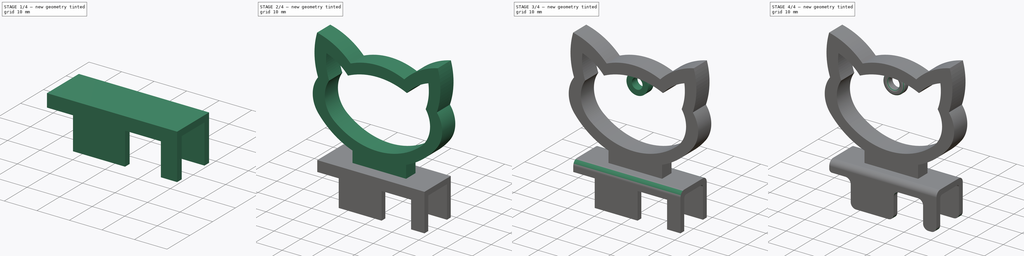
[diagram: build sequence overview — one tinted view per stage of 4, left to right]
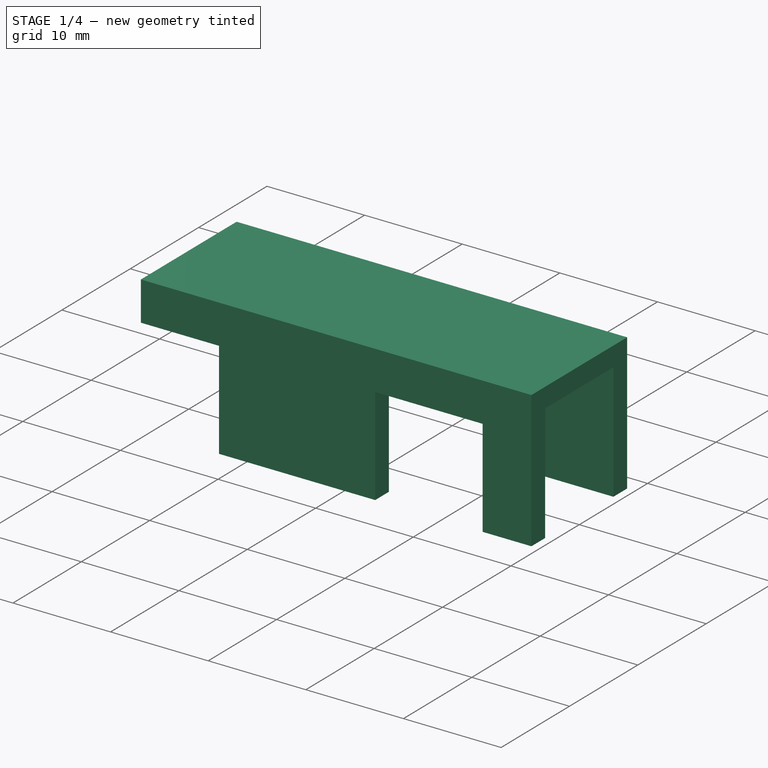
[diagram: stage 1 of 4 — iso view after this stage's code; geometry added in this stage tinted green]
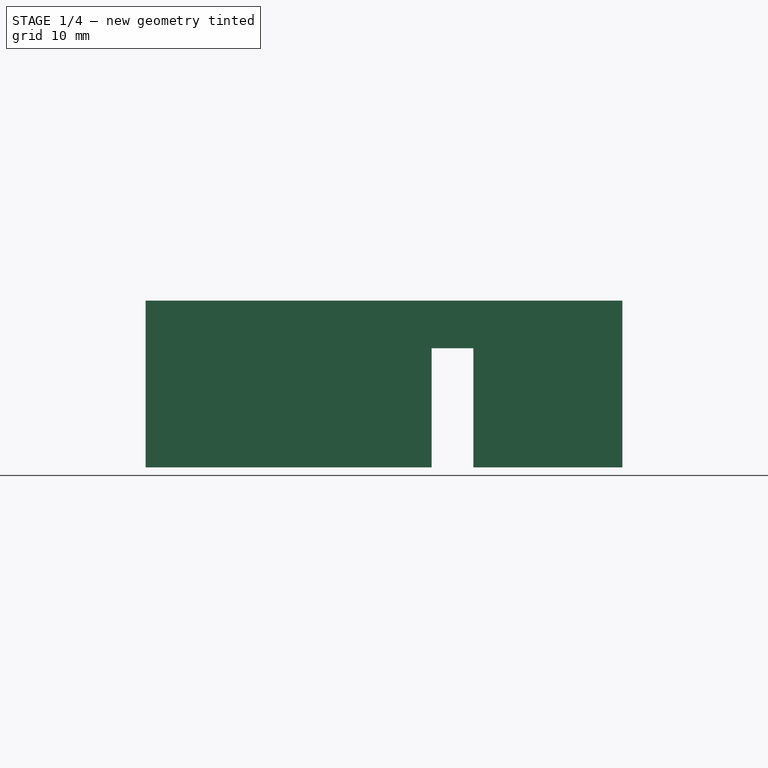
[diagram: stage 1 of 4 — front view after this stage's code; geometry added in this stage tinted green]
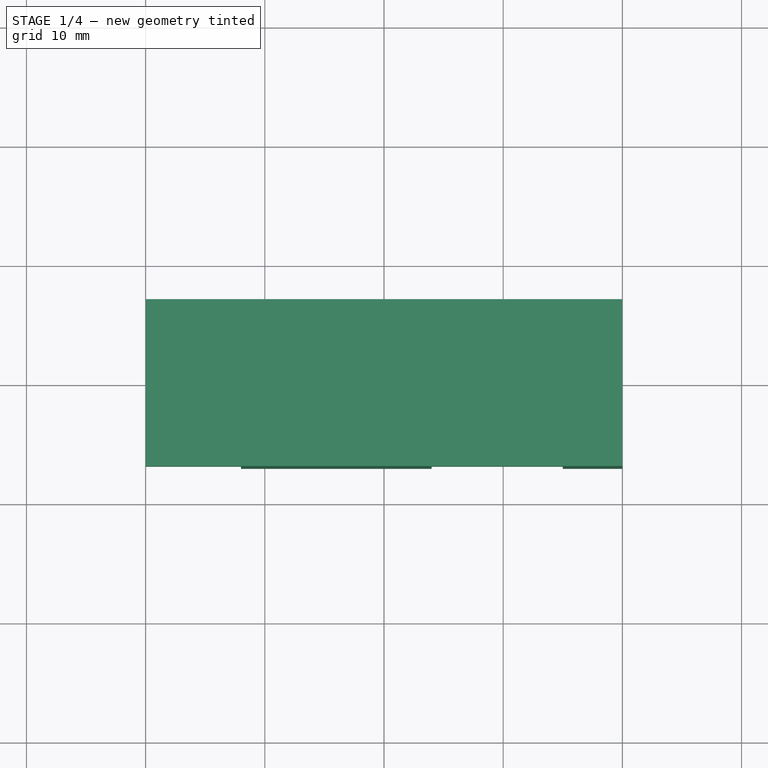
[diagram: stage 1 of 4 — top view after this stage's code; geometry added in this stage tinted green]
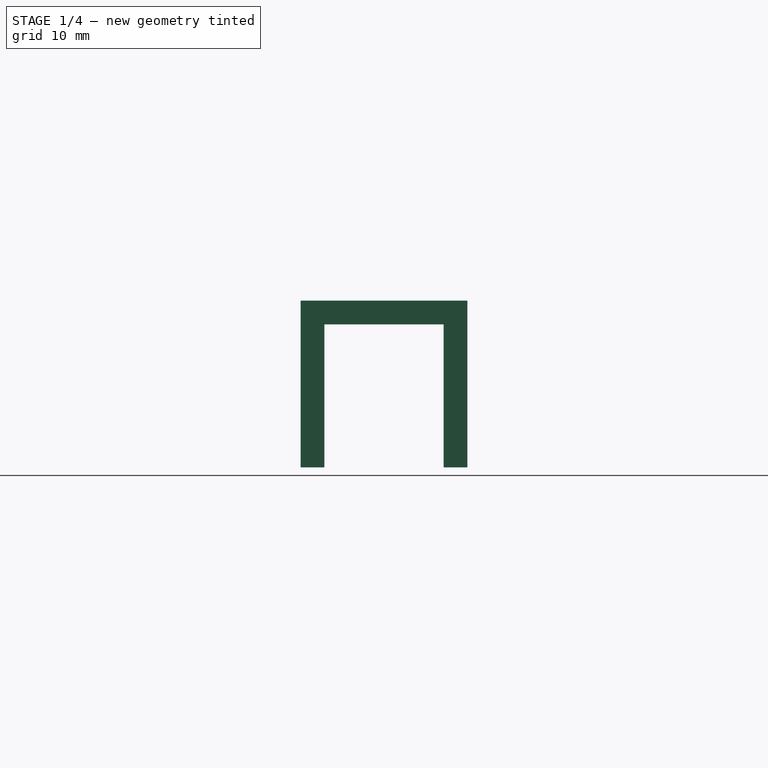
[diagram: stage 1 of 4 — right view after this stage's code; geometry added in this stage tinted green]
FCSTD DOCUMENT  (FreeCAD 0.18.4R)
Label: SelfieCAT
License: All rights reserved
LicenseURL: http://en.wikipedia.org/wiki/All_rights_reserved
objects: Sketcher::SketchObject×7, PartDesign::Fillet×5, PartDesign::Pad×4, PartDesign::Pocket×3, PartDesign::Body×1, App::Part×1
note: 27 computed .brp shape members not serialized (recipe doc carries the construction recipe); baked Part::Feature solids carry a one-line shape summary decoded from their .brp

FEATURE [Sketcher::SketchObject] Sketch
  MapMode = 5
  Placement = pos=(0,0,0) rot=(0.57735,0.57735,0.57735;2.0944rad)
  Support = -> [YZ_Plane001]
  sketch-geometry (9):
    g0: LineSegment StartX=-7 StartY=0 StartZ=0 EndX=-5 EndY=0 EndZ=0
    g1: LineSegment StartX=-5 StartY=0 StartZ=0 EndX=-5 EndY=12 EndZ=0
    g2: LineSegment StartX=-7 StartY=14 StartZ=0 EndX=-7 EndY=0 EndZ=0
    g3: LineSegment StartX=-7 StartY=14 StartZ=0 EndX=7 EndY=14 EndZ=0
    g4: LineSegment StartX=5 StartY=12 StartZ=0 EndX=-5 EndY=12 EndZ=0
    g5: LineSegment StartX=5 StartY=12 StartZ=0 EndX=5 EndY=3.6e-15 EndZ=0
    g6: LineSegment StartX=5 StartY=3.6e-15 StartZ=0 EndX=7 EndY=3.6e-15 EndZ=0
    g7: LineSegment StartX=7 StartY=3.6e-15 StartZ=0 EndX=7 EndY=14 EndZ=0
    g8: LineSegment [constr] StartX=5 StartY=12 StartZ=0 EndX=5 EndY=14 EndZ=0
  constraints (26):
    c: Coincident(g0,g1)
    c: Coincident(g2,g0)
    c: Horizontal(g0)
    c: Vertical(g1)
    c: Vertical(g2)
    c: PointOnObject(g0,g-1)
    c: Horizontal(g3)
    c: Horizontal(g4)
    c: Coincident(g5,g6)
    c: Coincident(g6,g7)
    c: Horizontal(g6)
    c: Vertical(g5)
    c: Vertical(g7)
    c: Symmetric(g5,g0,g-1)
    c: Coincident(g1,g4)
    c: Coincident(g4,g5)
    c: Coincident(g2,g3)
    c: Coincident(g7,g3)
    c: Equal(g0,g6)
    c: DistanceX(g0,g0) = 2
    c: DistanceX(g4,g4) = 10
    c: DistanceY(g5,g5) = 12
    c: Coincident(g4,g8)
    c: PointOnObject(g8,g3)
    c: Vertical(g8)
    c: Equal(g8,g6)
FEATURE [PartDesign::Pad] Pad
  Length = 40
  Length2 = 100
  Midplane = true
  Placement = pos=(0,0,0) rot=(0.57735,0.57735,0.57735;2.0944rad)
  Profile = -> Sketch
  Refine = true
  Type = 0
FEATURE [Sketcher::SketchObject] Sketch002
  ExternalGeometry = -> [Pad]
  MapMode = 5
  Placement = pos=(-3.1e-15,-7,1.5e-15) rot=(-0.57735,-0.57735,0.57735;4.18879rad)
  Support = -> [Pad]
  sketch-geometry (8):
    g0: LineSegment StartX=-10 StartY=15 StartZ=0 EndX=0 EndY=15 EndZ=0
    g1: LineSegment StartX=0 StartY=15 StartZ=0 EndX=0 EndY=4 EndZ=0
    g2: LineSegment StartX=0 StartY=4 StartZ=0 EndX=-10 EndY=4 EndZ=0
    g3: LineSegment StartX=-10 StartY=4 StartZ=0 EndX=-10 EndY=15 EndZ=0
    g4: LineSegment StartX=3.6e-15 StartY=-20 StartZ=0 EndX=-10 EndY=-20 EndZ=0
    g5: LineSegment StartX=-10 StartY=-20 StartZ=0 EndX=-10 EndY=-12 EndZ=0
    g6: LineSegment StartX=-10 StartY=-12 StartZ=0 EndX=3.6e-15 EndY=-12 EndZ=0
    g7: LineSegment StartX=3.6e-15 StartY=-12 StartZ=0 EndX=3.6e-15 EndY=-20 EndZ=0
  constraints (23):
    c: Coincident(g0,g1)
    c: Coincident(g1,g2)
    c: Coincident(g2,g3)
    c: Coincident(g3,g0)
    c: Horizontal(g0)
    c: Horizontal(g2)
    c: Vertical(g1)
    c: Vertical(g3)
    c: PointOnObject(g1,g-2)
    c: DistanceY(g-4,g1) = 24
    c: DistanceY(g0,g-3) = 5
    c: Coincident(g4,g5)
    c: Coincident(g5,g6)
    c: Coincident(g6,g7)
    c: Coincident(g7,g4)
    c: Horizontal(g4)
    c: Horizontal(g6)
    c: Vertical(g5)
    c: Vertical(g7)
    c: Coincident(g4,g-4)
    c: DistanceY(g7,g7) = 8
    c: Equal(g6,g2)
    c: DistanceX(g6,g6) = 10
FEATURE [PartDesign::Pocket] Pocket
  BaseFeature = -> Pad
  Length = 5
  Length2 = 100
  Placement = pos=(0,0,0) rot=(0.57735,0.57735,0.57735;2.0944rad)
  Profile = -> Sketch002
  Refine = true
  Type = 0
FEATURE [Sketcher::SketchObject] Sketch003
  MapMode = 5
  Placement = pos=(3.1e-15,7,-1.5e-15) rot=(0.57735,0.57735,0.57735;4.18879rad)
  Support = -> [Pocket]
  sketch-geometry (4):
    g0: LineSegment StartX=0 StartY=7.5 StartZ=0 EndX=10 EndY=7.5 EndZ=0
    g1: LineSegment StartX=10 StartY=7.5 StartZ=0 EndX=10 EndY=-7.5 EndZ=0
    g2: LineSegment StartX=10 StartY=-7.5 StartZ=0 EndX=0 EndY=-7.5 EndZ=0
    g3: LineSegment StartX=0 StartY=-7.5 StartZ=0 EndX=0 EndY=7.5 EndZ=0
  constraints (11):
    c: Coincident(g0,g1)
    c: Coincident(g1,g2)
    c: Coincident(g2,g3)
    c: Coincident(g3,g0)
    c: Horizontal(g0)
    c: Horizontal(g2)
    c: Vertical(g1)
    c: Vertical(g3)
    c: Symmetric(g0,g2,g-1)
    c: DistanceY(g1,g1) = 15
    c: DistanceX(g0,g0) = 10
FEATURE [PartDesign::Pocket] Pocket001
  BaseFeature = -> Pocket
  Length = 5
  Length2 = 100
  Placement = pos=(0,0,0) rot=(0.57735,0.57735,0.57735;2.0944rad)
  Profile = -> Sketch003
  Refine = true
  Type = 0
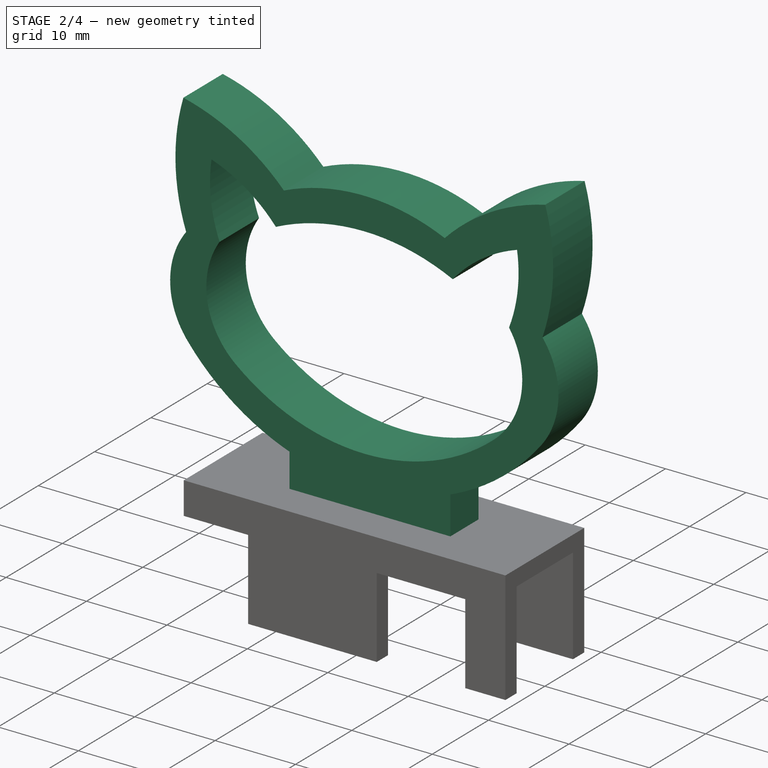
[diagram: stage 2 of 4 — iso view after this stage's code; geometry added in this stage tinted green]
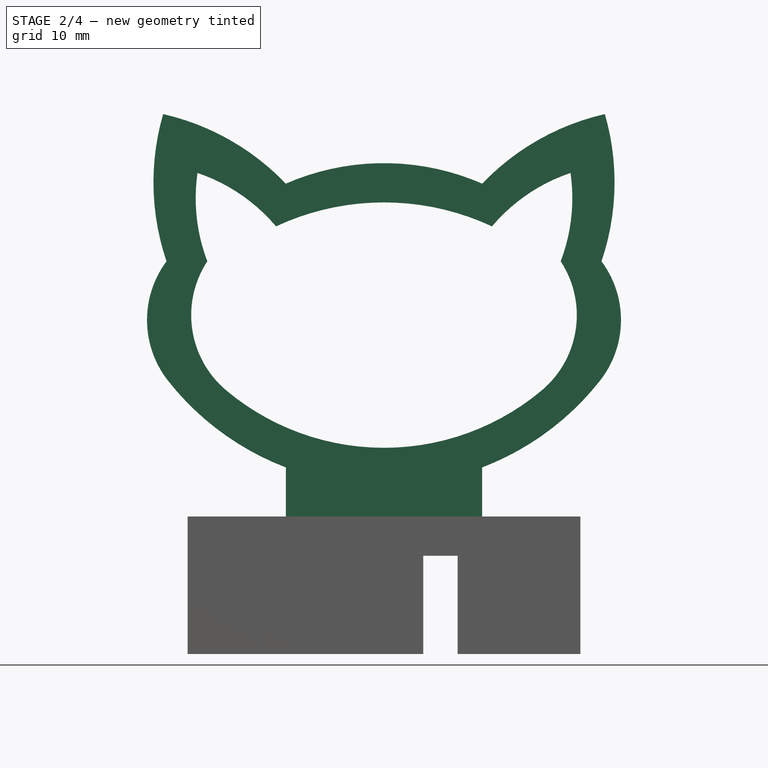
[diagram: stage 2 of 4 — front view after this stage's code; geometry added in this stage tinted green]
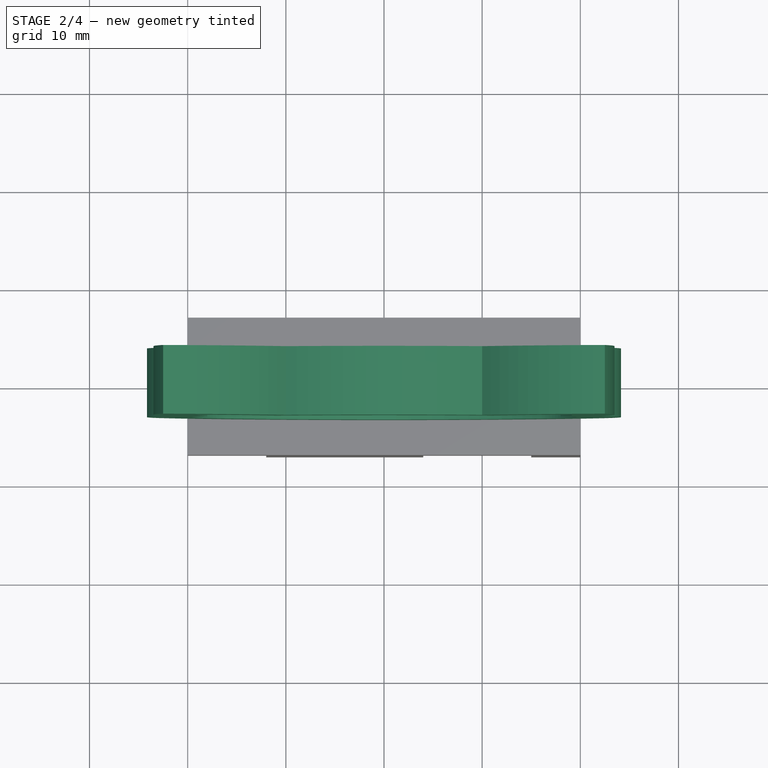
[diagram: stage 2 of 4 — top view after this stage's code; geometry added in this stage tinted green]
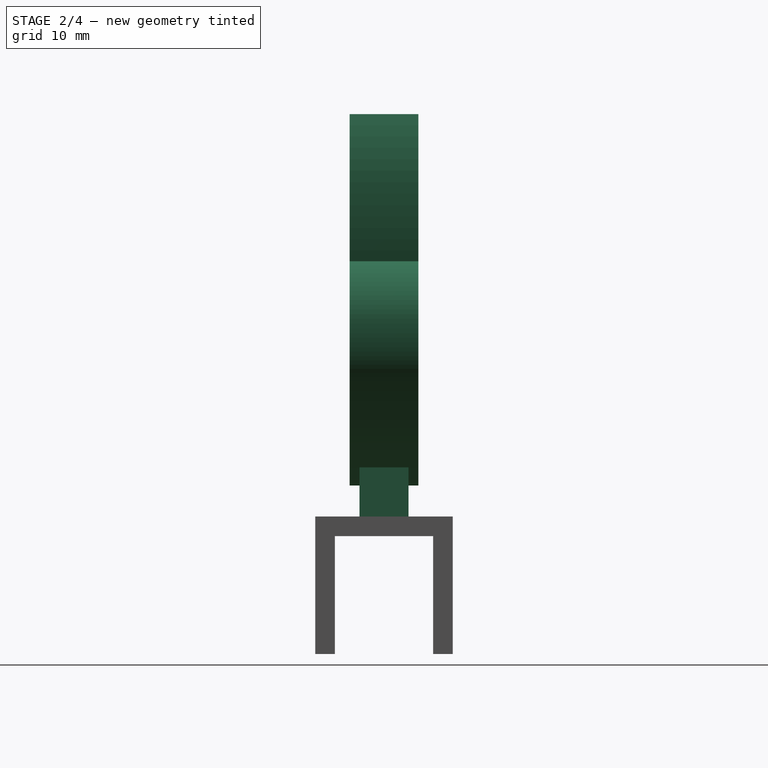
[diagram: stage 2 of 4 — right view after this stage's code; geometry added in this stage tinted green]
FEATURE [Sketcher::SketchObject] Sketch004
  ExternalGeometry = -> [Pocket001]
  MapMode = 5
  Placement = pos=(0,0,0) rot=(1,0,0;1.5708rad)
  Support = -> [XZ_Plane001]
  sketch-geometry (5):
    g0: LineSegment [constr] StartX=-10 StartY=19 StartZ=0 EndX=10 EndY=19 EndZ=0
    g1: LineSegment StartX=10 StartY=19 StartZ=0 EndX=10 EndY=14 EndZ=0
    g2: LineSegment StartX=10 StartY=14 StartZ=0 EndX=-10 EndY=14 EndZ=0
    g3: LineSegment StartX=-10 StartY=14 StartZ=0 EndX=-10 EndY=19 EndZ=0
    g4: ArcOfCircle CenterX=-2.3e-15 CenterY=45.1534 CenterZ=0 NormalX=0 NormalY=0 NormalZ=1 AngleXU=0 Radius=28 StartAngle=4.34718 EndAngle=5.0776
  constraints (14):
    c: Coincident(g0,g1)
    c: Coincident(g1,g2)
    c: Coincident(g2,g3)
    c: Coincident(g3,g0)
    c: Horizontal(g0)
    c: Vertical(g1)
    c: Vertical(g3)
    c: PointOnObject(g1,g-3)
    c: Symmetric(g1,g2,g-2)
    c: DistanceX(g2,g2) = 20
    c: DistanceY(g1,g1) = 5
    c: Coincident(g4,g1)
    c: Coincident(g4,g3)
    c: Radius(g4) = 28
FEATURE [PartDesign::Pad] Pad001
  BaseFeature = -> Pocket001
  Length = 5
  Length2 = 100
  Midplane = true
  Placement = pos=(0,0,0) rot=(0.57735,0.57735,0.57735;2.0944rad)
  Profile = -> Sketch004
  Refine = true
  Type = 0
FEATURE [Sketcher::SketchObject] Sketch005
  ExternalGeometry = -> [Pad001]
  MapMode = 5
  Placement = pos=(0,0,0) rot=(1,0,0;1.5708rad)
  Support = -> [XZ_Plane001]
  sketch-geometry (8):
    g0: ArcOfCircle CenterX=-1.74e-14 CenterY=45.1534 CenterZ=0 NormalX=0 NormalY=0 NormalZ=1 AngleXU=0 Radius=28 StartAngle=3.80854 EndAngle=5.61624
    g1: ArcOfCircle CenterX=-14.1429 CenterY=34.0188 CenterZ=0 NormalX=0 NormalY=0 NormalZ=1 AngleXU=0 Radius=10 StartAngle=2.50044 EndAngle=3.80854
    g2: ArcOfCircle CenterX=-7.5e-15 CenterY=25 CenterZ=0 NormalX=0 NormalY=0 NormalZ=1 AngleXU=0 Radius=25 StartAngle=1.15928 EndAngle=1.98231
    g3: ArcOfCircle CenterX=14.1429 CenterY=34.0188 CenterZ=0 NormalX=0 NormalY=0 NormalZ=1 AngleXU=0 Radius=10 StartAngle=5.61624 EndAngle=6.92434
    g4: ArcOfCircle CenterX=28.0601 CenterY=30.6261 CenterZ=0 NormalX=0 NormalY=0 NormalZ=1 AngleXU=0 Radius=25 StartAngle=1.79508 EndAngle=2.37807
    g5: ArcOfCircle CenterX=-28.0601 CenterY=30.6261 CenterZ=0 NormalX=0 NormalY=0 NormalZ=1 AngleXU=0 Radius=25 StartAngle=0.763521 EndAngle=1.34651
    g6: ArcOfCircle CenterX=-1.51317 CenterY=48.0453 CenterZ=0 NormalX=0 NormalY=0 NormalZ=1 AngleXU=0 Radius=25 StartAngle=5.95554 EndAngle=6.56509
    g7: ArcOfCircle CenterX=1.51317 CenterY=48.0453 CenterZ=0 NormalX=0 NormalY=0 NormalZ=1 AngleXU=0 Radius=25 StartAngle=2.85969 EndAngle=3.46924
  constraints (26):
    c: Coincident(g0,g-3)
    c: PointOnObject(g-3,g0)
    c: Symmetric(g2,g2,g-2)
    c: Symmetric(g4,g5,g-2)
    c: Symmetric(g3,g1,g-2)
    c: Tangent(g1,g0) = -1.5708
    c: Tangent(g3,g0) = -1.5708
    c: Radius(g2) = 25
    c: DistanceY(g-1,g2) = 25
    c: Radius(g1) = 10
    c: DistanceX(g2,g0) = 22
    c: DistanceX(g2,g2) = 20
    c: DistanceX(g5,g4) = 45
    c: DistanceY(g-1,g4) = 55
    c: Symmetric(g3,g1,g-2)
    c: DistanceY(g-1,g1) = 40
    c: Coincident(g4,g2)
    c: Coincident(g5,g2)
    c: Equal(g5,g4)
    c: Radius(g5) = 25
    c: Coincident(g6,g4)
    c: Coincident(g6,g3)
    c: Coincident(g7,g5)
    c: Coincident(g7,g1)
    c: Equal(g7,g6)
    c: Radius(g7) = 25
FEATURE [PartDesign::Pad] Pad002
  BaseFeature = -> Pad001
  Length = 7
  Length2 = 100
  Midplane = true
  Placement = pos=(0,0,0) rot=(0.57735,0.57735,0.57735;2.0944rad)
  Profile = -> Sketch005
  Refine = true
  Type = 0
FEATURE [Sketcher::SketchObject] Sketch006
  MapMode = 5
  Placement = pos=(0,0,0) rot=(1,0,0;1.5708rad)
  Support = -> [XZ_Plane001]
  sketch-geometry (8):
    g0: ArcOfCircle CenterX=1.3e-15 CenterY=20 CenterZ=0 NormalX=0 NormalY=0 NormalZ=1 AngleXU=0 Radius=26 StartAngle=1.13396 EndAngle=2.00763
    g1: ArcOfCircle CenterX=24.7511 CenterY=31.9435 CenterZ=0 NormalX=0 NormalY=0 NormalZ=1 AngleXU=0 Radius=18 StartAngle=1.896 EndAngle=2.44021
    g2: ArcOfCircle CenterX=1.1853 CenterY=46.4239 CenterZ=0 NormalX=0 NormalY=0 NormalZ=1 AngleXU=0 Radius=18 StartAngle=5.91826 EndAngle=6.4268
    g3: ArcOfCircle CenterX=9.64207 CenterY=34.5095 CenterZ=0 NormalX=0 NormalY=0 NormalZ=1 AngleXU=0 Radius=10 StartAngle=5.41054 EndAngle=6.86441
    g4: ArcOfCircle CenterX=-3e-16 CenterY=46 CenterZ=0 NormalX=0 NormalY=0 NormalZ=1 AngleXU=0 Radius=25 StartAngle=4.01423 EndAngle=5.41054
    g5: ArcOfCircle CenterX=-9.64207 CenterY=34.5095 CenterZ=0 NormalX=0 NormalY=0 NormalZ=1 AngleXU=0 Radius=10 StartAngle=2.56037 EndAngle=4.01423
    g6: ArcOfCircle CenterX=-1.1853 CenterY=46.4239 CenterZ=0 NormalX=0 NormalY=0 NormalZ=1 AngleXU=0 Radius=18 StartAngle=2.99798 EndAngle=3.50652
    g7: ArcOfCircle CenterX=-24.7511 CenterY=31.9435 CenterZ=0 NormalX=0 NormalY=0 NormalZ=1 AngleXU=0 Radius=18 StartAngle=0.701384 EndAngle=1.24559
  constraints (26):
    c: Coincident(g1,g0)
    c: Coincident(g2,g1)
    c: Coincident(g3,g2)
    c: Coincident(g6,g5)
    c: Coincident(g7,g6)
    c: Coincident(g7,g0)
    c: Symmetric(g0,g0,g-2)
    c: Symmetric(g1,g6,g-2)
    c: Symmetric(g5,g2,g-2)
    c: Tangent(g4,g3) = -1.5708
    c: Radius(g0) = 26
    c: DistanceY(g-1,g0) = 20
    c: DistanceX(g0,g0) = 22
    c: DistanceX(g6,g1) = 38
    c: DistanceY(g-1,g1) = 49
    c: Equal(g2,g1)
    c: Equal(g1,g7)
    c: Equal(g7,g6)
    c: Radius(g7) = 18
    c: Tangent(g5,g4) = -1.5708
    c: Radius(g4) = 25
    c: Symmetric(g4,g3,g-2)
    c: DistanceY(g0,g4) = 26
    c: Radius(g5) = 10
    c: DistanceX(g5,g2) = 36
    c: DistanceY(g-1,g5) = 40
FEATURE [PartDesign::Pocket] Pocket002
  BaseFeature = -> Pad002
  Length = 5
  Length2 = 100
  Midplane = true
  Placement = pos=(0,0,0) rot=(0.57735,0.57735,0.57735;2.0944rad)
  Profile = -> Sketch006
  Refine = true
  Reversed = true
  Type = 1
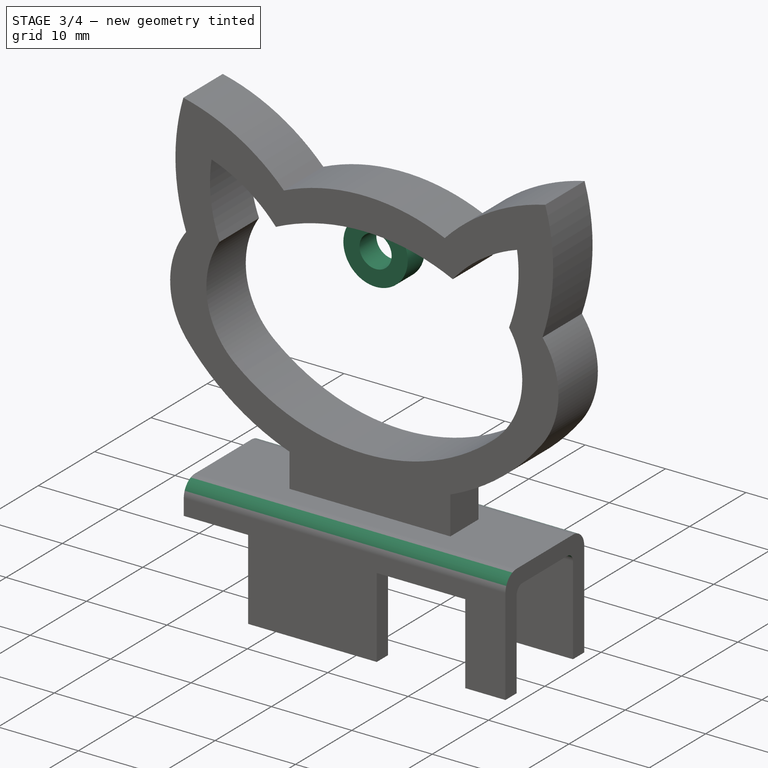
[diagram: stage 3 of 4 — iso view after this stage's code; geometry added in this stage tinted green]
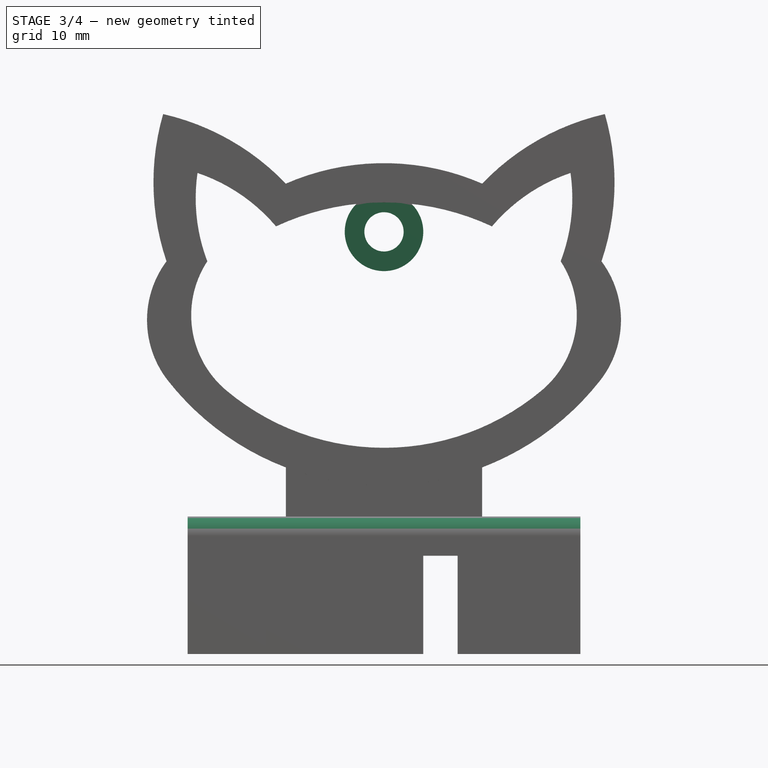
[diagram: stage 3 of 4 — front view after this stage's code; geometry added in this stage tinted green]
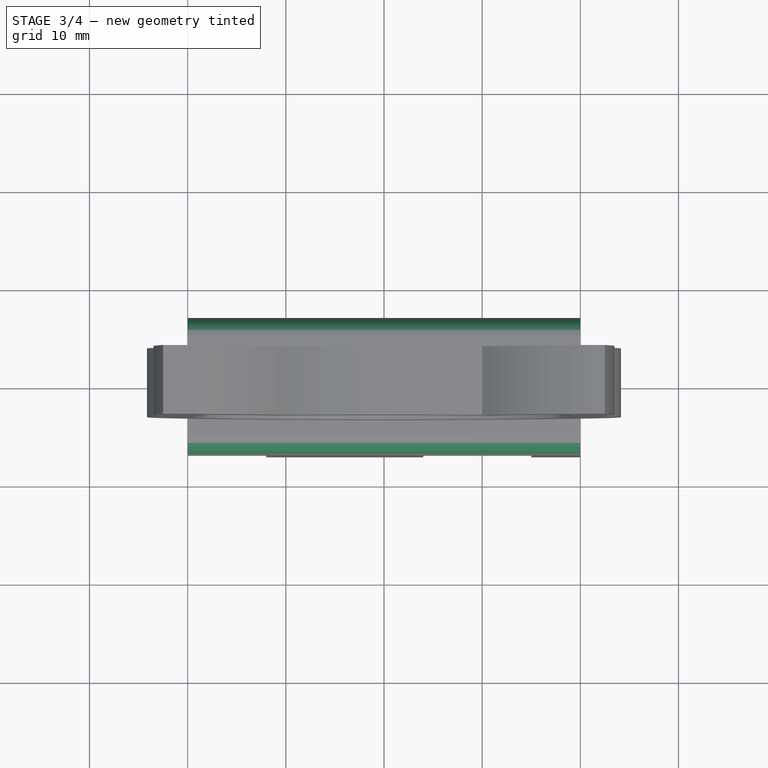
[diagram: stage 3 of 4 — top view after this stage's code; geometry added in this stage tinted green]
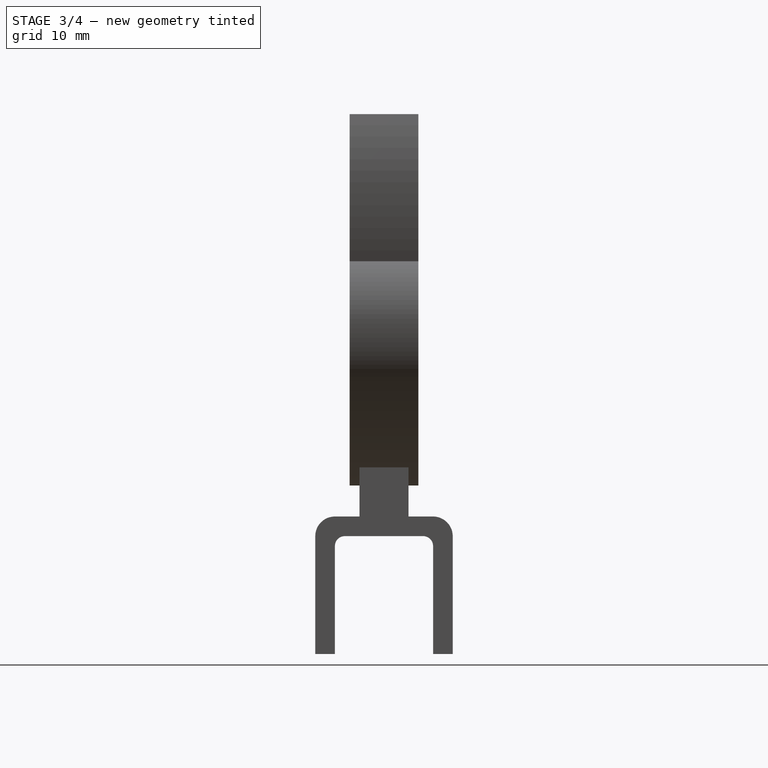
[diagram: stage 3 of 4 — right view after this stage's code; geometry added in this stage tinted green]
FEATURE [Sketcher::SketchObject] Sketch007
  MapMode = 5
  Placement = pos=(0,0,0) rot=(1,0,0;1.5708rad)
  Support = -> [XZ_Plane001]
  sketch-geometry (2):
    g0: Circle CenterX=0 CenterY=43 CenterZ=0 NormalX=0 NormalY=0 NormalZ=1 AngleXU=0 Radius=4
    g1: Circle CenterX=0 CenterY=43 CenterZ=0 NormalX=0 NormalY=0 NormalZ=1 AngleXU=0 Radius=2
  constraints (5):
    c: PointOnObject(g0,g-2)
    c: Coincident(g1,g0)
    c: Radius(g0) = 4
    c: Radius(g1) = 2
    c: DistanceY(g-1,g0) = 43
FEATURE [PartDesign::Pad] Pad003
  BaseFeature = -> Pocket002
  Length = 3
  Length2 = 100
  Midplane = true
  Placement = pos=(0,0,0) rot=(0.57735,0.57735,0.57735;2.0944rad)
  Profile = -> Sketch007
  Refine = true
  Type = 0
FEATURE [PartDesign::Fillet] Fillet
  Base = -> Pad003 [Edge65,Edge68]
  BaseFeature = -> Pad003
  Placement = pos=(0,0,0) rot=(0.57735,0.57735,0.57735;2.0944rad)
  Radius = 2
FEATURE [PartDesign::Fillet] Fillet001
  Base = -> Fillet [Edge53,Edge47]
  BaseFeature = -> Fillet
  Placement = pos=(0,0,0) rot=(0.57735,0.57735,0.57735;2.0944rad)
  Radius = 1
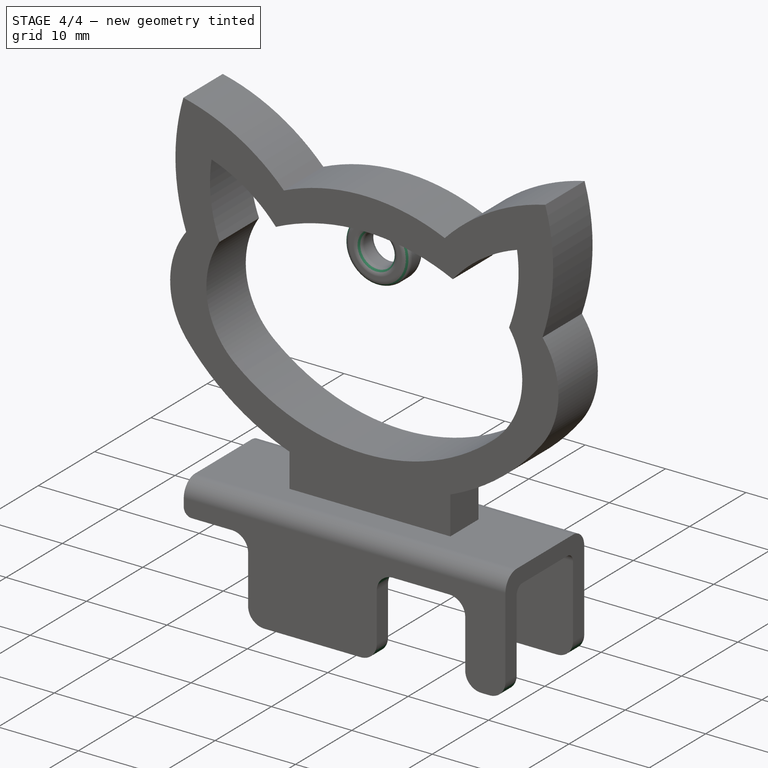
[diagram: stage 4 of 4 — iso view after this stage's code; geometry added in this stage tinted green]
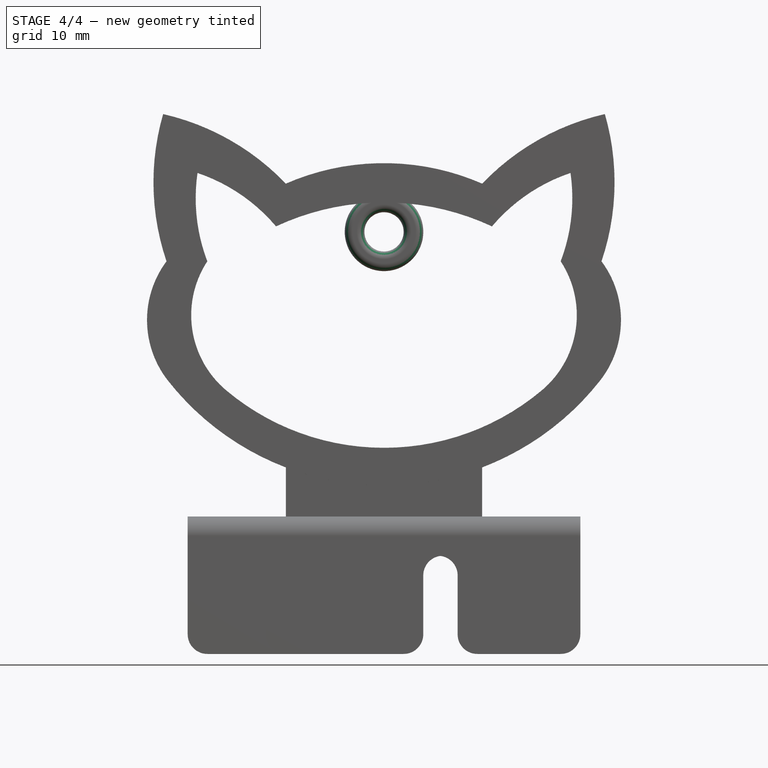
[diagram: stage 4 of 4 — front view after this stage's code; geometry added in this stage tinted green]
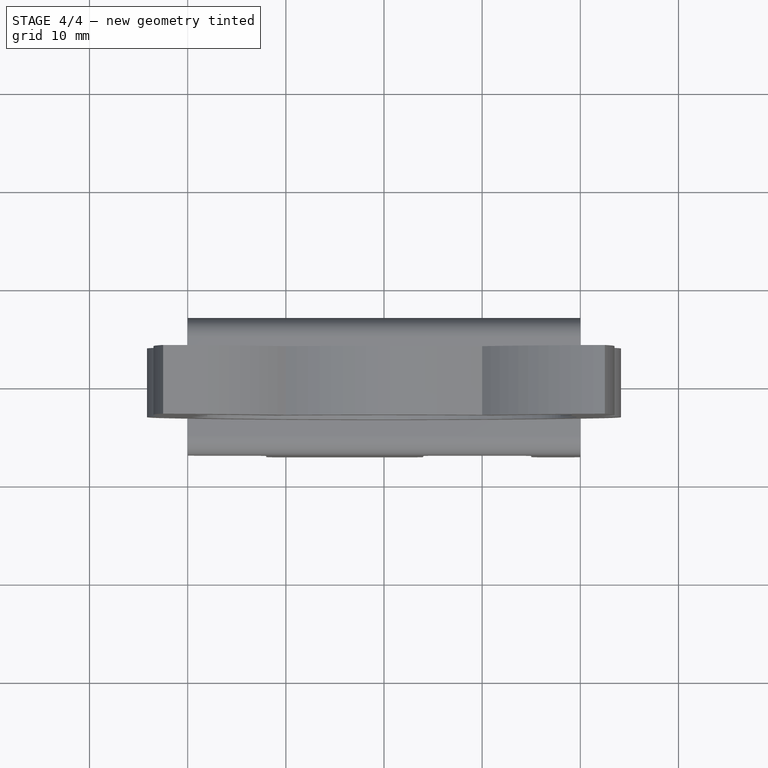
[diagram: stage 4 of 4 — top view after this stage's code; geometry added in this stage tinted green]
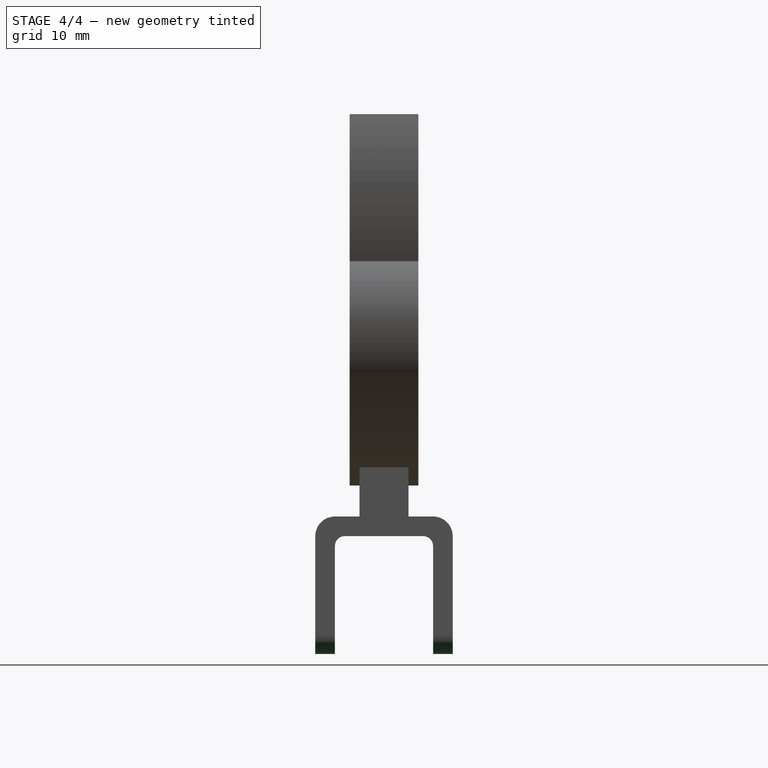
[diagram: stage 4 of 4 — right view after this stage's code; geometry added in this stage tinted green]
FEATURE [PartDesign::Fillet] Fillet002
  Base = -> Fillet001 [Edge63,Edge65,Edge64,Edge62,Edge61,Edge69,Edge67,Edge68,Edge53,Edge10,Edge66,Edge70,Edge25]
  BaseFeature = -> Fillet001
  Placement = pos=(0,0,0) rot=(0.57735,0.57735,0.57735;2.0944rad)
  Radius = 2
FEATURE [PartDesign::Fillet] Fillet003
  Base = -> Fillet002 [Edge11]
  BaseFeature = -> Fillet002
  Placement = pos=(0,0,0) rot=(0.57735,0.57735,0.57735;2.0944rad)
  Radius = 1
FEATURE [PartDesign::Fillet] Fillet004
  Base = -> Fillet003 [Edge174,Edge176,Edge173,Edge177]
  BaseFeature = -> Fillet003
  Placement = pos=(0,0,0) rot=(0.57735,0.57735,0.57735;2.0944rad)
  Radius = 0.8
FEATURE [PartDesign::Body] Body
  Group = -> [Sketch,Pad,Sketch002,Pocket,Sketch003,Pocket001,Sketch004,Pad001,Sketch005,Pad002,Sketch006,Pocket002,Sketch007,Pad003,Fillet,Fillet001,Fillet002,Fillet003,Fillet004]
  Origin = -> Origin001
  Tip = -> Fillet004
FEATURE [App::Part] Part
  Group = -> [Body]
  Origin = -> Origin
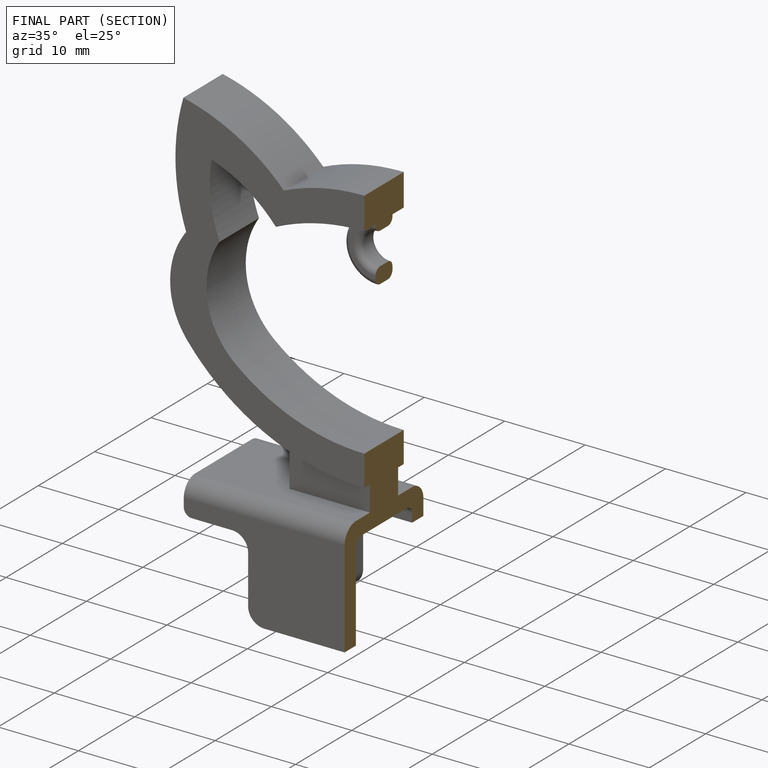
[diagram: finished part — half-section view (interior)]
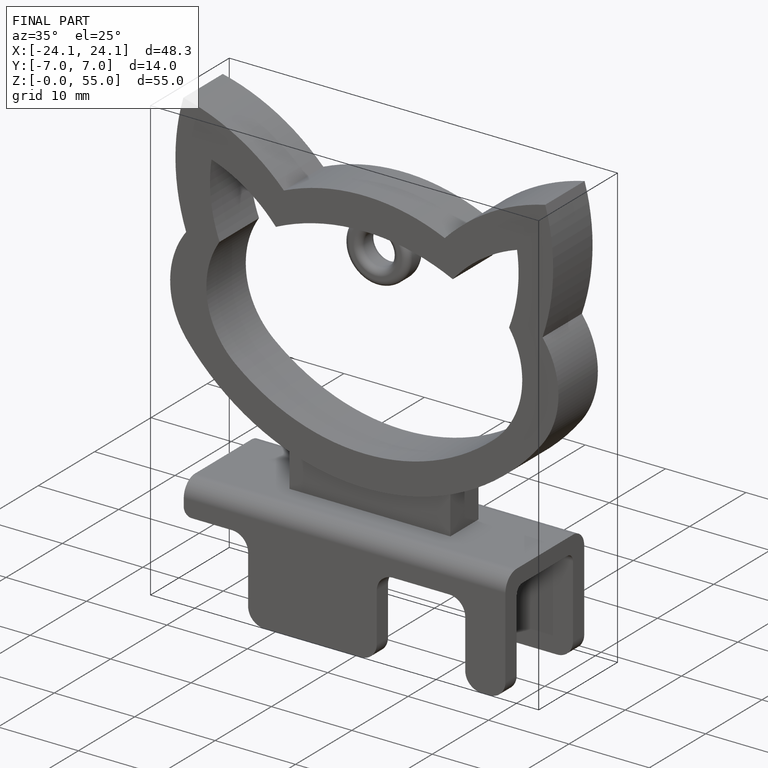
[diagram: finished part — iso view with bounding-box wireframe]
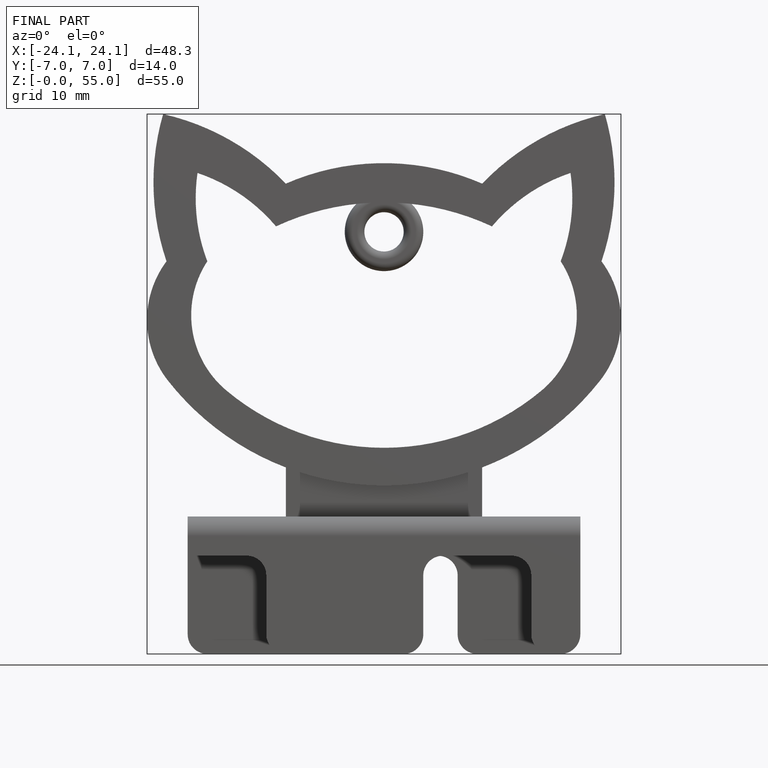
[diagram: finished part — front view with bounding-box wireframe]
